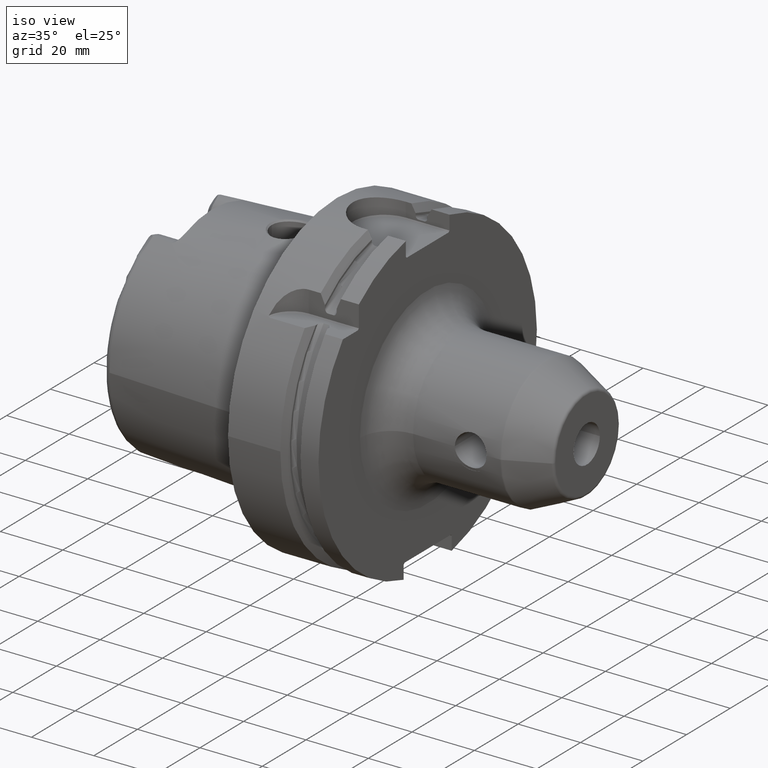
[diagram: clean part render]
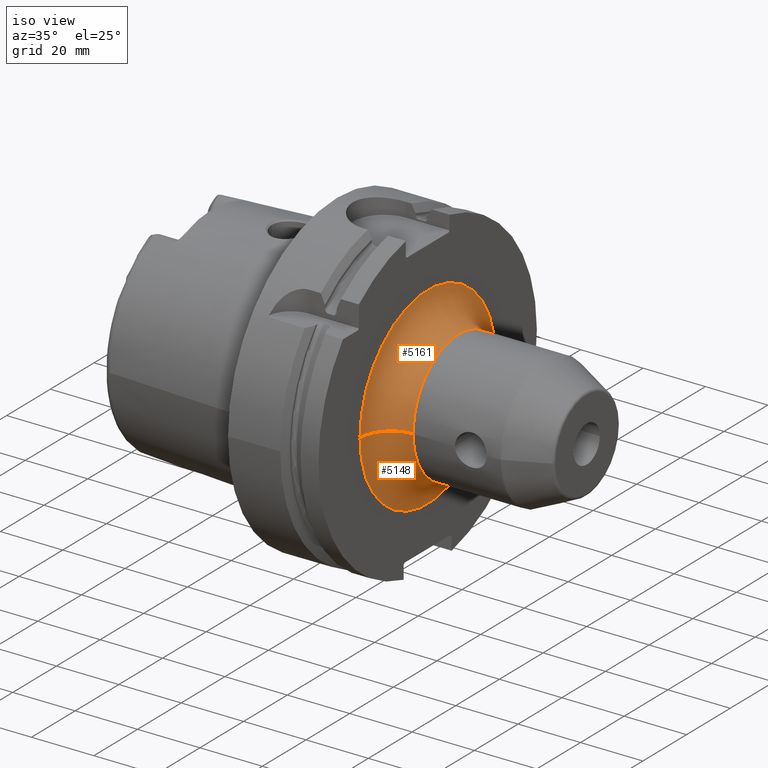
[diagram: same view with one multi-face feature highlighted, each face labeled with its STEP entity id]
A machine part, iso view. The highlighted faces form ONE feature: a constant-radius fillet chain: 2 tangent blend faces with common blend radius 10 mm. The faces share edges in the B-rep.
Their STEP definitions:
[1] entity #5148 (Torus):
#1091=CARTESIAN_POINT('',(2.9E1,0.E0,0.E0));
#1092=DIRECTION('',(1.E0,0.E0,0.E0));
#1093=DIRECTION('',(0.E0,-1.E0,0.E0));
#1094=AXIS2_PLACEMENT_3D('',#1091,#1092,#1093);
#1810=CARTESIAN_POINT('',(3.9E1,-3.1E1,5.822287096890E-13));
#1811=DIRECTION('',(0.E0,-1.878141739353E-14,-1.E0));
#1812=DIRECTION('',(-1.E0,0.E0,0.E0));
#1813=AXIS2_PLACEMENT_3D('',#1810,#1811,#1812);
#1815=CARTESIAN_POINT('',(3.9E1,3.1E1,-5.862949015167E-13));
#1816=DIRECTION('',(0.E0,1.891238901597E-14,1.E0));
#1817=DIRECTION('',(-1.E0,0.E0,0.E0));
#1818=AXIS2_PLACEMENT_3D('',#1815,#1816,#1817);
#1907=CARTESIAN_POINT('',(3.9E1,0.E0,0.E0));
#1908=DIRECTION('',(1.E0,0.E0,0.E0));
#1909=DIRECTION('',(0.E0,-1.E0,0.E0));
#1910=AXIS2_PLACEMENT_3D('',#1907,#1908,#1909);
#3281=CARTESIAN_POINT('',(2.9E1,-3.1E1,0.E0));
#3282=CARTESIAN_POINT('',(2.9E1,3.1E1,0.E0));
#3283=VERTEX_POINT('',#3281);
#3284=VERTEX_POINT('',#3282);
#3285=CARTESIAN_POINT('',(3.9E1,-2.1E1,0.E0));
#3286=CARTESIAN_POINT('',(3.9E1,2.1E1,0.E0));
#3287=VERTEX_POINT('',#3285);
#3288=VERTEX_POINT('',#3286);
#5134=CARTESIAN_POINT('',(3.9E1,0.E0,0.E0));
#5135=DIRECTION('',(1.E0,0.E0,0.E0));
#5136=DIRECTION('',(0.E0,-9.999932980240E-1,3.661134678176E-3));
#5137=AXIS2_PLACEMENT_3D('',#5134,#5135,#5136);
#5138=TOROIDAL_SURFACE('',#5137,3.1E1,1.E1);
#5139=ORIENTED_EDGE('',*,*,#4414,.F.);
#5141=ORIENTED_EDGE('',*,*,#5140,.T.);
#5143=ORIENTED_EDGE('',*,*,#5142,.T.);
#5145=ORIENTED_EDGE('',*,*,#5144,.F.);
#5146=EDGE_LOOP('',(#5139,#5141,#5143,#5145));
#5147=FACE_OUTER_BOUND('',#5146,.F.);
#5148=ADVANCED_FACE('',(#5147),#5138,.F.);
#1095=CIRCLE('',#1094,3.1E1);
#1814=CIRCLE('',#1813,1.E1);
#1819=CIRCLE('',#1818,1.E1);
#1911=CIRCLE('',#1910,2.1E1);
#4414=EDGE_CURVE('',#3283,#3284,#1095,.T.);
#5140=EDGE_CURVE('',#3283,#3287,#1814,.T.);
#5142=EDGE_CURVE('',#3287,#3288,#1911,.T.);
#5144=EDGE_CURVE('',#3284,#3288,#1819,.T.);
[2] entity #5161 (Torus):
#1096=CARTESIAN_POINT('',(2.9E1,0.E0,0.E0));
#1097=DIRECTION('',(1.E0,0.E0,0.E0));
#1098=DIRECTION('',(0.E0,1.E0,0.E0));
#1099=AXIS2_PLACEMENT_3D('',#1096,#1097,#1098);
#1810=CARTESIAN_POINT('',(3.9E1,-3.1E1,5.822287096890E-13));
#1811=DIRECTION('',(0.E0,-1.878141739353E-14,-1.E0));
#1812=DIRECTION('',(-1.E0,0.E0,0.E0));
#1813=AXIS2_PLACEMENT_3D('',#1810,#1811,#1812);
#1815=CARTESIAN_POINT('',(3.9E1,3.1E1,-5.862949015167E-13));
#1816=DIRECTION('',(0.E0,1.891238901597E-14,1.E0));
#1817=DIRECTION('',(-1.E0,0.E0,0.E0));
#1818=AXIS2_PLACEMENT_3D('',#1815,#1816,#1817);
#1848=CARTESIAN_POINT('',(3.9E1,0.E0,0.E0));
#1849=DIRECTION('',(1.E0,0.E0,0.E0));
#1850=DIRECTION('',(0.E0,1.E0,0.E0));
#1851=AXIS2_PLACEMENT_3D('',#1848,#1849,#1850);
#3281=CARTESIAN_POINT('',(2.9E1,-3.1E1,0.E0));
#3282=CARTESIAN_POINT('',(2.9E1,3.1E1,0.E0));
#3283=VERTEX_POINT('',#3281);
#3284=VERTEX_POINT('',#3282);
#3285=CARTESIAN_POINT('',(3.9E1,-2.1E1,0.E0));
#3286=CARTESIAN_POINT('',(3.9E1,2.1E1,0.E0));
#3287=VERTEX_POINT('',#3285);
#3288=VERTEX_POINT('',#3286);
#5149=CARTESIAN_POINT('',(3.9E1,0.E0,0.E0));
#5150=DIRECTION('',(1.E0,0.E0,0.E0));
#5151=DIRECTION('',(0.E0,9.999932980240E-1,-3.661134678175E-3));
#5152=AXIS2_PLACEMENT_3D('',#5149,#5150,#5151);
#5153=TOROIDAL_SURFACE('',#5152,3.1E1,1.E1);
#5154=ORIENTED_EDGE('',*,*,#4416,.F.);
#5155=ORIENTED_EDGE('',*,*,#5144,.T.);
#5157=ORIENTED_EDGE('',*,*,#5156,.T.);
#5158=ORIENTED_EDGE('',*,*,#5140,.F.);
#5159=EDGE_LOOP('',(#5154,#5155,#5157,#5158));
#5160=FACE_OUTER_BOUND('',#5159,.F.);
#5161=ADVANCED_FACE('',(#5160),#5153,.F.);
#1100=CIRCLE('',#1099,3.1E1);
#1814=CIRCLE('',#1813,1.E1);
#1819=CIRCLE('',#1818,1.E1);
#1852=CIRCLE('',#1851,2.1E1);
#4416=EDGE_CURVE('',#3284,#3283,#1100,.T.);
#5140=EDGE_CURVE('',#3283,#3287,#1814,.T.);
#5144=EDGE_CURVE('',#3284,#3288,#1819,.T.);
#5156=EDGE_CURVE('',#3288,#3287,#1852,.T.);